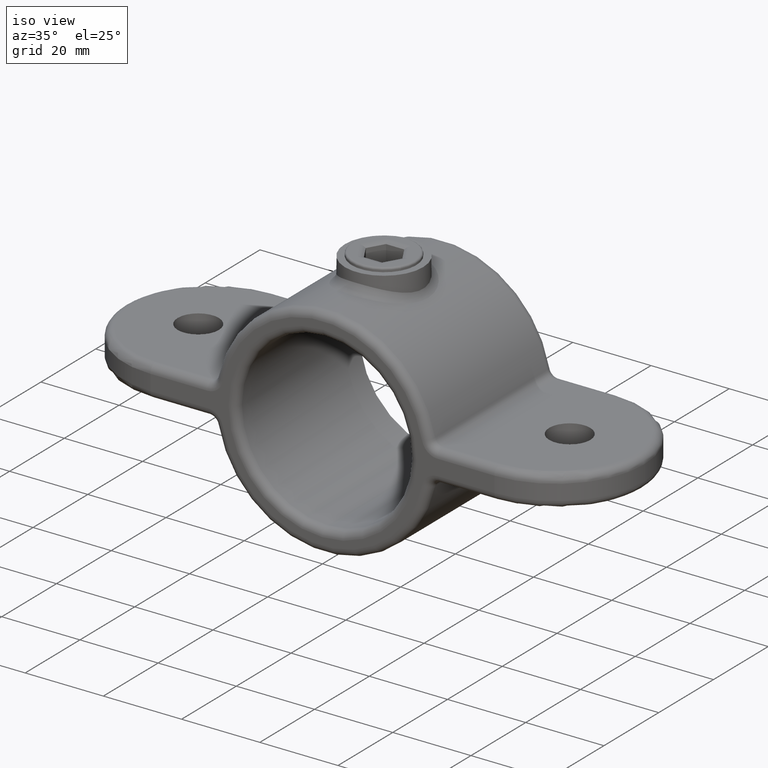
[diagram: clean part render]
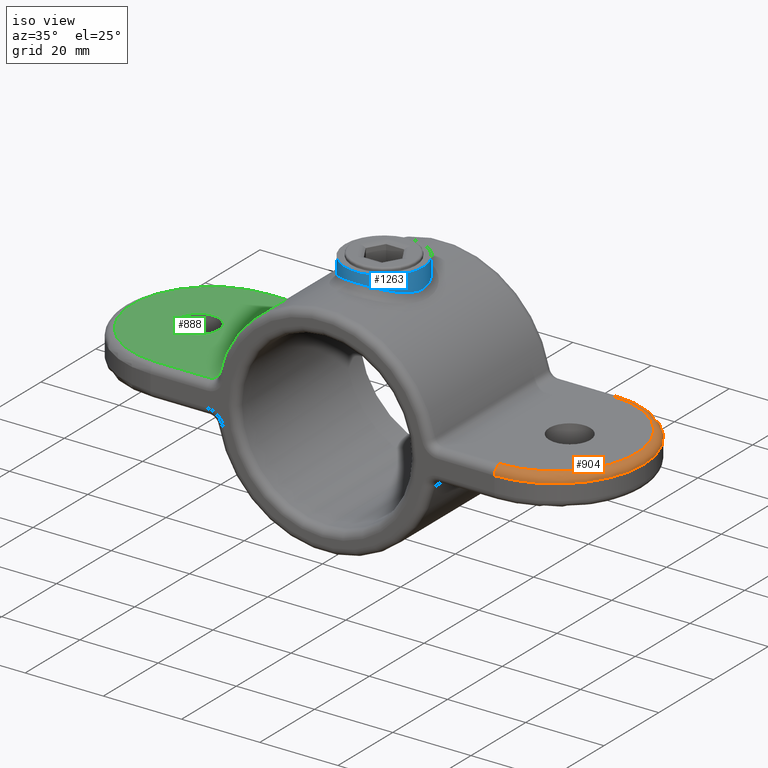
[diagram: same view with three faces highlighted in distinct colors, each labeled with its STEP entity id]
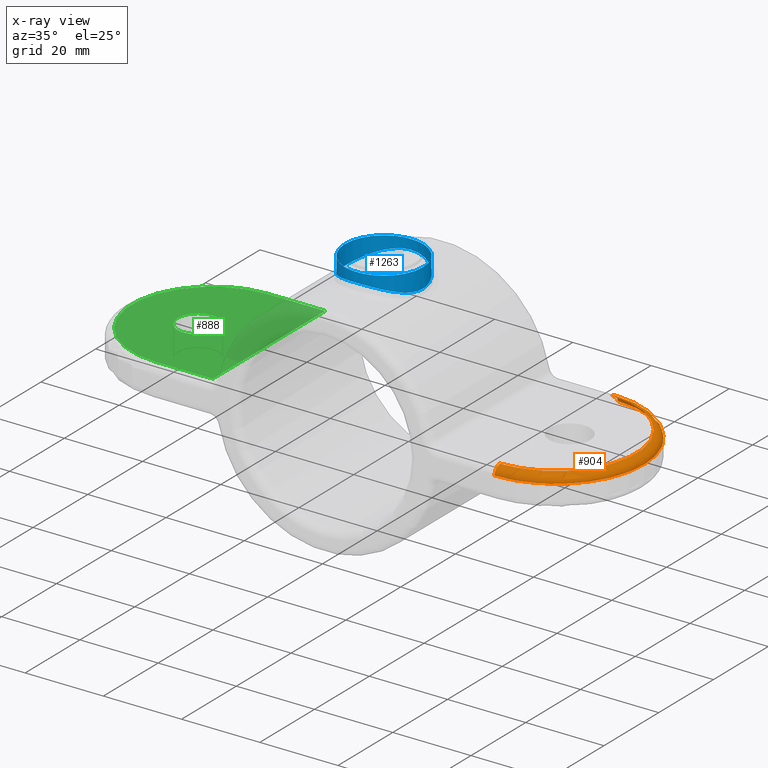
[diagram: x-ray of the same camera — body ghosted, the three highlighted faces saturated]
A machine part, iso view with three faces highlighted in distinct colors.
The next image is the same camera in x-ray (body ghosted, the three faces saturated) — at least one of them is partly hidden behind the body in this view.
Their STEP definitions:

[orange] entity #904 — the highlighted toroidal blend (fillet) surface has major radius 20.5 mm and minor (blend) radius 2 mm.
#70 = EDGE_CURVE ( 'NONE', #2636, #1897, #892, .T. ) ;
#282 = EDGE_LOOP ( 'NONE', ( #2623, #2871, #2290, #2196 ) ) ;
#406 = CARTESIAN_POINT ( 'NONE',  ( 44.00000000000001421, 45.00000000000000000, 2.000000000000000000 ) ) ;
#433 = CARTESIAN_POINT ( 'NONE',  ( 44.00000000000001421, 22.50000000000000000, 2.000000000000000000 ) ) ;
#481 = AXIS2_PLACEMENT_3D ( 'NONE', #587, #2630, #1251 ) ;
#526 = VERTEX_POINT ( 'NONE', #1655 ) ;
#585 = CIRCLE ( 'NONE', #1706, 22.49999999999999289 ) ;
#587 = CARTESIAN_POINT ( 'NONE',  ( 44.00000000000001421, 22.50000000000000000, 2.000000000000000000 ) ) ;
#694 = CIRCLE ( 'NONE', #1361, 2.000000000000000000 ) ;
#892 = CIRCLE ( 'NONE', #1670, 20.49999999999998934 ) ;
#904 = ADVANCED_FACE ( 'NONE', ( #1546 ), #2425, .T. ) ;
#992 = CIRCLE ( 'NONE', #1737, 2.000000000000000000 ) ;
#993 = DIRECTION ( 'NONE',  ( 1.000000000000000000, 0.000000000000000000, 0.000000000000000000 ) ) ;
#1002 = DIRECTION ( 'NONE',  ( 0.000000000000000000, 0.000000000000000000, -1.000000000000000000 ) ) ;
#1251 = DIRECTION ( 'NONE',  ( 1.000000000000000000, 0.000000000000000000, 0.000000000000000000 ) ) ;
#1361 = AXIS2_PLACEMENT_3D ( 'NONE', #2348, #993, #1002 ) ;
#1448 = DIRECTION ( 'NONE',  ( 0.000000000000000000, 0.000000000000000000, 1.000000000000000000 ) ) ;
#1527 = DIRECTION ( 'NONE',  ( 0.000000000000000000, 0.000000000000000000, 1.000000000000000000 ) ) ;
#1546 = FACE_OUTER_BOUND ( 'NONE', #282, .T. ) ;
#1646 = DIRECTION ( 'NONE',  ( 1.000000000000000000, 0.000000000000000000, 0.000000000000000000 ) ) ;
#1655 = CARTESIAN_POINT ( 'NONE',  ( 44.00000000000000711, 0.000000000000000000, 2.000000000000000000 ) ) ;
#1670 = AXIS2_PLACEMENT_3D ( 'NONE', #2084, #1448, #1646 ) ;
#1706 = AXIS2_PLACEMENT_3D ( 'NONE', #433, #2155, #2852 ) ;
#1724 = CARTESIAN_POINT ( 'NONE',  ( 44.00000000000001421, 43.00000000000000000, 4.000000000000000000 ) ) ;
#1737 = AXIS2_PLACEMENT_3D ( 'NONE', #2195, #1767, #1527 ) ;
#1767 = DIRECTION ( 'NONE',  ( -1.000000000000000000, 0.000000000000000000, 0.000000000000000000 ) ) ;
#1852 = EDGE_CURVE ( 'NONE', #526, #2636, #992, .T. ) ;
#1897 = VERTEX_POINT ( 'NONE', #1724 ) ;
#2084 = CARTESIAN_POINT ( 'NONE',  ( 44.00000000000001421, 22.50000000000000000, 4.000000000000000000 ) ) ;
#2146 = CARTESIAN_POINT ( 'NONE',  ( 44.00000000000000711, 2.000000000000001776, 4.000000000000000000 ) ) ;
#2155 = DIRECTION ( 'NONE',  ( -0.000000000000000000, -0.000000000000000000, -1.000000000000000000 ) ) ;
#2195 = CARTESIAN_POINT ( 'NONE',  ( 44.00000000000000711, 2.000000000000000000, 2.000000000000000000 ) ) ;
#2196 = ORIENTED_EDGE ( 'NONE', *, *, #2754, .F. ) ;
#2290 = ORIENTED_EDGE ( 'NONE', *, *, #1852, .F. ) ;
#2348 = CARTESIAN_POINT ( 'NONE',  ( 44.00000000000001421, 43.00000000000000000, 2.000000000000000000 ) ) ;
#2425 = TOROIDAL_SURFACE ( 'NONE', #481, 20.49999999999999645, 2.000000000000000000 ) ;
#2623 = ORIENTED_EDGE ( 'NONE', *, *, #2645, .T. ) ;
#2630 = DIRECTION ( 'NONE',  ( 0.000000000000000000, 0.000000000000000000, 1.000000000000000000 ) ) ;
#2636 = VERTEX_POINT ( 'NONE', #2146 ) ;
#2645 = EDGE_CURVE ( 'NONE', #2805, #1897, #694, .T. ) ;
#2754 = EDGE_CURVE ( 'NONE', #2805, #526, #585, .T. ) ;
#2805 = VERTEX_POINT ( 'NONE', #406 ) ;
#2852 = DIRECTION ( 'NONE',  ( 1.000000000000000000, 0.000000000000000000, 0.000000000000000000 ) ) ;
#2871 = ORIENTED_EDGE ( 'NONE', *, *, #70, .F. ) ;

[blue] entity #1263 — the highlighted cylindrical surface (bore or boss wall) has radius 10 mm, axis along (-0, -0, -1).
#12 = CARTESIAN_POINT ( 'NONE',  ( 6.622794208319118248, 30.02019254127147718, 28.93377902185220307 ) ) ;
#19 = CARTESIAN_POINT ( 'NONE',  ( 5.851919554816922719, 14.38464557356769191, 29.16840172154029176 ) ) ;
#32 = CARTESIAN_POINT ( 'NONE',  ( 4.171150980207340986, 13.40548047051905023, 29.58179595202526713 ) ) ;
#54 = CARTESIAN_POINT ( 'NONE',  ( 9.476708080692997527, 25.75793250835366166, 27.76294633932060307 ) ) ;
#64 = CARTESIAN_POINT ( 'NONE',  ( -9.737926309719856732, 24.79808518369776493, 27.63070786210274932 ) ) ;
#79 = CARTESIAN_POINT ( 'NONE',  ( -4.464995558829286892, 31.47151288054516627, 29.52667067408633272 ) ) ;
#94 = CARTESIAN_POINT ( 'NONE',  ( -6.844573745175799750, 29.79759653527101193, 28.85514315200595803 ) ) ;
#102 = CARTESIAN_POINT ( 'NONE',  ( -1.326783075261378952, 32.43362877966936253, 29.96788425861287308 ) ) ;
#131 = DIRECTION ( 'NONE',  ( -1.000000000000000000, 0.000000000000000000, 0.000000000000000000 ) ) ;
#181 = CARTESIAN_POINT ( 'NONE',  ( 10.00000000000000178, 22.50000000000000000, 32.49999999999999289 ) ) ;
#233 = CARTESIAN_POINT ( 'NONE',  ( -9.932904982622765999, 21.16975370590785843, 27.53097399777186638 ) ) ;
#239 = CARTESIAN_POINT ( 'NONE',  ( 7.944603943576116656, 16.39258270802082862, 28.44857682741926652 ) ) ;
#250 = CARTESIAN_POINT ( 'NONE',  ( 8.977818022158581712, 18.04756325138937001, 28.00070361428770127 ) ) ;
#261 = CARTESIAN_POINT ( 'NONE',  ( 5.040457930359802496, 13.85710905413484184, 29.38600627992249059 ) ) ;
#267 = CARTESIAN_POINT ( 'NONE',  ( 7.536724103564595545, 15.89563243435954121, 28.61001122192883273 ) ) ;
#281 = CARTESIAN_POINT ( 'NONE',  ( 8.961096985873348686, 26.95025414472403469, 28.00723653991551032 ) ) ;
#297 = CARTESIAN_POINT ( 'NONE',  ( -2.623432459663675331, 32.15541545845545102, 29.83681196435464500 ) ) ;
#314 = CARTESIAN_POINT ( 'NONE',  ( -6.108233588266227976, 30.42424823643639087, 29.09241248789619405 ) ) ;
#326 = CARTESIAN_POINT ( 'NONE',  ( -5.035221827422885710, 31.16434832084092577, 29.39275725080900514 ) ) ;
#431 = CARTESIAN_POINT ( 'NONE',  ( -3.558234213291098680, 13.14876467506906543, 29.69683459840415907 ) ) ;
#432 = CIRCLE ( 'NONE', #1759, 10.00000000000000178 ) ;
#441 = EDGE_CURVE ( 'NONE', #812, #812, #1087, .T. ) ;
#466 = CARTESIAN_POINT ( 'NONE',  ( 9.480102581375092541, 19.25145194187018305, 27.76128559405074014 ) ) ;
#474 = CARTESIAN_POINT ( 'NONE',  ( 9.934485987634904092, 23.82356544404882115, 27.53017085010103315 ) ) ;
#482 = CARTESIAN_POINT ( 'NONE',  ( 9.869032174585326445, 20.85306333972795656, 27.56364396502981862 ) ) ;
#505 = CARTESIAN_POINT ( 'NONE',  ( 10.00018264041746363, 22.17610790866214643, 27.49535851677714504 ) ) ;
#510 = CARTESIAN_POINT ( 'NONE',  ( -8.120439402843983245, 28.34499680683589062, 28.37423612316986521 ) ) ;
#532 = CARTESIAN_POINT ( 'NONE',  ( 0.6621789904701769203, 32.48362802694693841, 29.99212463856281374 ) ) ;
#543 = CARTESIAN_POINT ( 'NONE',  ( -6.606638979578753457, 30.01375732074173541, 28.93515081128246536 ) ) ;
#635 = CARTESIAN_POINT ( 'NONE',  ( -9.657469083909210994, 19.88424349025884652, 27.67149652192184917 ) ) ;
#665 = CARTESIAN_POINT ( 'NONE',  ( -4.454780112947243076, 13.54113796723617824, 29.52196060901718511 ) ) ;
#668 = ORIENTED_EDGE ( 'NONE', *, *, #441, .T. ) ;
#682 = CARTESIAN_POINT ( 'NONE',  ( 4.471808932678349890, 31.46873994643011585, 29.52542342355807037 ) ) ;
#713 = CARTESIAN_POINT ( 'NONE',  ( 3.258644845589846906, 13.02284970798234554, 29.75323421909739707 ) ) ;
#715 = EDGE_CURVE ( 'NONE', #2068, #2068, #432, .T. ) ;
#733 = CARTESIAN_POINT ( 'NONE',  ( 1.326135221870601288, 32.41729171544199772, 29.96041587052595290 ) ) ;
#747 = CARTESIAN_POINT ( 'NONE',  ( -9.933037868943605631, 23.82980299081985009, 27.53090705241965708 ) ) ;
#753 = CARTESIAN_POINT ( 'NONE',  ( -8.663773104302313399, 27.53598358475277763, 28.14470752134748821 ) ) ;
#765 = CARTESIAN_POINT ( 'NONE',  ( -7.514775830554404124, 29.10548220955039511, 28.61376543254218063 ) ) ;
#812 = VERTEX_POINT ( 'NONE', #1941 ) ;
#864 = CARTESIAN_POINT ( 'NONE',  ( -9.738185090744673644, 20.20309114512838988, 27.63057600661922919 ) ) ;
#877 = CARTESIAN_POINT ( 'NONE',  ( -7.528388174229828422, 15.88651677530456396, 28.61311064429564865 ) ) ;
#890 = CARTESIAN_POINT ( 'NONE',  ( -2.292872485800744986, 12.76076481394416540, 29.87612271389791019 ) ) ;
#910 = CARTESIAN_POINT ( 'NONE',  ( 8.664340701934049704, 17.46547142232159899, 28.14440735947289340 ) ) ;
#919 = EDGE_LOOP ( 'NONE', ( #668 ) ) ;
#928 = CARTESIAN_POINT ( 'NONE',  ( 8.482985971267718028, 27.80510173558304388, 28.22107316986464198 ) ) ;
#957 = CARTESIAN_POINT ( 'NONE',  ( -3.255849477052296770, 31.96091378930047355, 29.74695279777168722 ) ) ;
#984 = ORIENTED_EDGE ( 'NONE', *, *, #715, .F. ) ;
#1006 = CARTESIAN_POINT ( 'NONE',  ( 0.000000000000000000, 22.50000000000000000, 32.49999999999999289 ) ) ;
#1087 = B_SPLINE_CURVE_WITH_KNOTS ( 'NONE', 3,
 ( #1736, #2849, #233, #864, #635, #2176, #2417, #1763, #1979, #2649, #877, #2869, #2214, #1749, #1510, #665, #2201, #431, #1499, #1961, #890, #2012, #1565, #1814, #1130, #2233, #2021, #2678, #713, #32, #2258, #261, #2697, #19, #2444, #1556, #1794, #267, #239, #910, #250, #466, #1779, #482, #1805, #2030, #505, #2706, #474, #2044, #54, #1588, #281, #2688, #928, #2669, #2244, #12, #1326, #1771, #682, #1172, #1617, #1861, #1835, #2309, #733, #532, #1136, #2751, #102, #2502, #297, #957, #1632, #79, #326, #1406, #314, #543, #94, #2509, #765, #1825, #510, #753, #2741, #1606, #1844, #1625, #64, #747, #2060, #2090 ),
 .UNSPECIFIED., .T., .F.,
 ( 4, 2, 2, 2, 2, 2, 2, 2, 2, 2, 2, 2, 2, 2, 2, 2, 2, 2, 2, 2, 2, 2, 2, 2, 2, 2, 2, 2, 2, 2, 2, 2, 2, 2, 2, 2, 2, 2, 2, 2, 2, 2, 2, 2, 2, 2, 4 ),
 ( 0.000000000000000000, 0.001981109626637219973, 0.002971664439955824973, 0.003962219253274430406, 0.005943328879911640404, 0.007924438506548850403, 0.009905548133186059534, 0.01089610294650466757, 0.01188665775982327213, 0.01287721257314188017, 0.01386776738646048647, 0.01584887701309770081, 0.01683943182641630537, 0.01782998663973491688, 0.01981109626637212948, 0.02080165107969073751, 0.02179220589300934555, 0.02278276070632795011, 0.02377331551964655468, 0.02575442514628377422, 0.02773553477292099029, 0.02971664439955820636, 0.03070719921287681092, 0.03169775402619540855, 0.03367886365283262462, 0.03565997327946985457, 0.03665052809278845913, 0.03764108290610707064, 0.03962219253274427977, 0.04160330215938149584, 0.04358441178601871191, 0.04457496659933731648, 0.04556552141265591410, 0.04655607622597451867, 0.04754663103929311629, 0.04952774066593032543, 0.05051829547924892305, 0.05150885029256753456, 0.05348995991920472981, 0.05448051473252333438, 0.05547106954584193894, 0.05646162435916053657, 0.05745217917247914113, 0.05943328879911633639, 0.06042384361243494095, 0.06141439842575354552, 0.06339550805239074771 ),
 .UNSPECIFIED. ) ;
#1130 = CARTESIAN_POINT ( 'NONE',  ( 0.6737986918661146296, 12.51714846169067030, 29.99175192173827398 ) ) ;
#1136 = CARTESIAN_POINT ( 'NONE',  ( 0.3257868494820493344, 32.50020863867860044, 30.00010014654872492 ) ) ;
#1172 = CARTESIAN_POINT ( 'NONE',  ( 3.558907782991938440, 31.85109716725411388, 29.69676441460828542 ) ) ;
#1228 = DIRECTION ( 'NONE',  ( -0.000000000000000000, -0.000000000000000000, -1.000000000000000000 ) ) ;
#1240 = DIRECTION ( 'NONE',  ( 0.000000000000000000, 0.000000000000000000, 1.000000000000000000 ) ) ;
#1263 = ADVANCED_FACE ( 'NONE', ( #2421, #1971 ), #2853, .T. ) ;
#1326 = CARTESIAN_POINT ( 'NONE',  ( 6.116665579276277853, 30.43756735186795481, 29.09572594126508704 ) ) ;
#1405 = EDGE_LOOP ( 'NONE', ( #984 ) ) ;
#1406 = CARTESIAN_POINT ( 'NONE',  ( -5.846387818485253796, 30.61947332928194498, 29.17003992340400842 ) ) ;
#1493 = CARTESIAN_POINT ( 'NONE',  ( 0.000000000000000000, 22.50000000000000000, 32.49999999999999289 ) ) ;
#1499 = CARTESIAN_POINT ( 'NONE',  ( -3.249797247090354890, 13.03701534561710673, 29.74790242890325587 ) ) ;
#1510 = CARTESIAN_POINT ( 'NONE',  ( -5.028815885516179307, 13.85030141759913569, 29.38889090401577064 ) ) ;
#1556 = CARTESIAN_POINT ( 'NONE',  ( 6.608787295665230488, 14.98812464824279012, 28.93444548278780459 ) ) ;
#1565 = CARTESIAN_POINT ( 'NONE',  ( -0.6599999847507238560, 12.49967943703734718, 30.00015387020692614 ) ) ;
#1588 = CARTESIAN_POINT ( 'NONE',  ( 9.100784627109430147, 26.65707219565447517, 27.94206884865534590 ) ) ;
#1606 = CARTESIAN_POINT ( 'NONE',  ( -9.349912544164411088, 26.06172921293726219, 27.82338077982819158 ) ) ;
#1617 = CARTESIAN_POINT ( 'NONE',  ( 3.247476939411381380, 31.96372538753772830, 29.74824372935308858 ) ) ;
#1625 = CARTESIAN_POINT ( 'NONE',  ( -9.656983315117047439, 25.11767646655662745, 27.67174293845051025 ) ) ;
#1632 = CARTESIAN_POINT ( 'NONE',  ( -3.563895403299301545, 31.84904843986169354, 29.69584402496031927 ) ) ;
#1690 = DIRECTION ( 'NONE',  ( 1.000000000000000000, 0.000000000000000000, 0.000000000000000000 ) ) ;
#1736 = CARTESIAN_POINT ( 'NONE',  ( -10.00000000000000355, 22.50000000000000000, 27.49545416973506917 ) ) ;
#1749 = CARTESIAN_POINT ( 'NONE',  ( -5.310178048851419419, 14.02013078539979318, 29.31732745362355175 ) ) ;
#1759 = AXIS2_PLACEMENT_3D ( 'NONE', #1493, #1240, #1690 ) ;
#1763 = CARTESIAN_POINT ( 'NONE',  ( -8.971429611559344153, 18.03432622280196540, 28.00367757269335556 ) ) ;
#1771 = CARTESIAN_POINT ( 'NONE',  ( 5.042877330171631201, 31.15955896723293250, 29.39075990764836277 ) ) ;
#1779 = CARTESIAN_POINT ( 'NONE',  ( 9.672608292201113400, 19.87675114992198999, 27.66412323128110629 ) ) ;
#1794 = CARTESIAN_POINT ( 'NONE',  ( 6.850211648821378674, 15.20756757623453304, 28.85323908565628770 ) ) ;
#1805 = CARTESIAN_POINT ( 'NONE',  ( 9.918825818898678648, 21.18584688440432018, 27.53779497179125713 ) ) ;
#1814 = CARTESIAN_POINT ( 'NONE',  ( 0.3372589015655695355, 12.50016203787351898, 29.99992222182833856 ) ) ;
#1825 = CARTESIAN_POINT ( 'NONE',  ( -7.925234081429258559, 28.60695634164215662, 28.45385038625384766 ) ) ;
#1835 = CARTESIAN_POINT ( 'NONE',  ( 2.299770008482054706, 32.23754045103155619, 29.87532749204055094 ) ) ;
#1844 = CARTESIAN_POINT ( 'NONE',  ( -9.462749455754762451, 25.75052758327418445, 27.76820275984053765 ) ) ;
#1861 = CARTESIAN_POINT ( 'NONE',  ( 2.618521000274864452, 32.15668434059301006, 29.83740637339478496 ) ) ;
#1939 = AXIS2_PLACEMENT_3D ( 'NONE', #1006, #1228, #131 ) ;
#1941 = CARTESIAN_POINT ( 'NONE',  ( -10.00000000000000178, 22.50000000000000000, 27.49545416973507272 ) ) ;
#1961 = CARTESIAN_POINT ( 'NONE',  ( -2.617795761307442959, 12.84306435413577852, 29.83752152103968314 ) ) ;
#1971 = FACE_OUTER_BOUND ( 'NONE', #1405, .T. ) ;
#1979 = CARTESIAN_POINT ( 'NONE',  ( -8.664429000265680969, 17.46564803090005213, 28.14436559482916778 ) ) ;
#2012 = CARTESIAN_POINT ( 'NONE',  ( -1.317487947733531950, 12.56500676953539397, 29.96853617370448220 ) ) ;
#2021 = CARTESIAN_POINT ( 'NONE',  ( 1.664831203941333104, 12.63406932532017990, 29.93592294751976368 ) ) ;
#2030 = CARTESIAN_POINT ( 'NONE',  ( 9.984124136576040698, 21.84626514371599626, 27.50379402798789741 ) ) ;
#2044 = CARTESIAN_POINT ( 'NONE',  ( 9.670328695492143467, 25.13259952220909810, 27.66527993513992101 ) ) ;
#2060 = CARTESIAN_POINT ( 'NONE',  ( -10.00000000000000355, 23.17240044319024150, 27.49545416973506917 ) ) ;
#2068 = VERTEX_POINT ( 'NONE', #181 ) ;
#2090 = CARTESIAN_POINT ( 'NONE',  ( -10.00000000000000355, 22.50000000000000000, 27.49545416973506917 ) ) ;
#2176 = CARTESIAN_POINT ( 'NONE',  ( -9.464014492319687832, 19.25325995588215733, 27.76757965017334229 ) ) ;
#2201 = CARTESIAN_POINT ( 'NONE',  ( -4.160726480184121279, 13.40082487387092414, 29.58386554903104226 ) ) ;
#2214 = CARTESIAN_POINT ( 'NONE',  ( -6.121331405126518632, 14.56564476107084793, 29.09442177410735653 ) ) ;
#2233 = CARTESIAN_POINT ( 'NONE',  ( 1.337736456708799926, 12.58426549944596573, 29.95967313170234902 ) ) ;
#2244 = CARTESIAN_POINT ( 'NONE',  ( 7.532649301026024702, 29.10862266219616501, 28.61148771171488647 ) ) ;
#2258 = CARTESIAN_POINT ( 'NONE',  ( 4.468199575467327378, 13.54785095054608846, 29.51902765359715630 ) ) ;
#2309 = CARTESIAN_POINT ( 'NONE',  ( 1.653576675553633635, 32.36784273818015123, 29.93683107119795395 ) ) ;
#2417 = CARTESIAN_POINT ( 'NONE',  ( -9.350733156245100375, 18.94036696686609744, 27.82298517291964757 ) ) ;
#2421 = FACE_OUTER_BOUND ( 'NONE', #919, .T. ) ;
#2444 = CARTESIAN_POINT ( 'NONE',  ( 6.110221542101410996, 14.57727739182270632, 29.09181247364199052 ) ) ;
#2502 = CARTESIAN_POINT ( 'NONE',  ( -2.299211354040940236, 32.23770818338267929, 29.87540580524352762 ) ) ;
#2509 = CARTESIAN_POINT ( 'NONE',  ( -7.298642436608552941, 29.34345844783805290, 28.69445274484505859 ) ) ;
#2649 = CARTESIAN_POINT ( 'NONE',  ( -7.944947894198874039, 16.39305046624009421, 28.44843591574975505 ) ) ;
#2669 = CARTESIAN_POINT ( 'NONE',  ( 7.940698906337313900, 28.61276717480206955, 28.45018049847978858 ) ) ;
#2678 = CARTESIAN_POINT ( 'NONE',  ( 2.632189844742737872, 12.83022333856395925, 29.84335402957596628 ) ) ;
#2688 = CARTESIAN_POINT ( 'NONE',  ( 8.652614274165863151, 27.52377222466973095, 28.14657306311210405 ) ) ;
#2697 = CARTESIAN_POINT ( 'NONE',  ( 5.317037068854658877, 14.02456155994932629, 29.31549646788875663 ) ) ;
#2706 = CARTESIAN_POINT ( 'NONE',  ( 9.999630030814385506, 23.16455621356418249, 27.49564793104739380 ) ) ;
#2741 = CARTESIAN_POINT ( 'NONE',  ( -8.971204129905634872, 26.96593940160623859, 28.00377558437640246 ) ) ;
#2751 = CARTESIAN_POINT ( 'NONE',  ( -0.6706009245385006201, 32.49957668872031036, 29.99979681061999415 ) ) ;
#2849 = CARTESIAN_POINT ( 'NONE',  ( -10.00000000000000355, 21.82759955680975139, 27.49545416973506562 ) ) ;
#2853 = CYLINDRICAL_SURFACE ( 'NONE', #1939, 10.00000000000000178 ) ;
#2869 = CARTESIAN_POINT ( 'NONE',  ( -6.617840266882782707, 14.97544160317455386, 28.93541912045396813 ) ) ;

[green] entity #888 — the highlighted planar face has unit normal (0, 0, 1).
#3 = DIRECTION ( 'NONE',  ( 1.000000000000000000, 0.000000000000000000, 0.000000000000000000 ) ) ;
#72 = VERTEX_POINT ( 'NONE', #271 ) ;
#209 = VERTEX_POINT ( 'NONE', #1730 ) ;
#225 = CARTESIAN_POINT ( 'NONE',  ( -47.50000000000000711, 22.49999999999997868, 4.000000000000000000 ) ) ;
#244 = CARTESIAN_POINT ( 'NONE',  ( -44.00000000000001421, 22.50000000000000000, 4.000000000000000000 ) ) ;
#254 = VERTEX_POINT ( 'NONE', #1461 ) ;
#266 = CARTESIAN_POINT ( 'NONE',  ( 44.00000000000001421, 43.00000000000000000, 4.000000000000000000 ) ) ;
#271 = CARTESIAN_POINT ( 'NONE',  ( -44.00000000000001421, 2.000000000000001776, 4.000000000000000000 ) ) ;
#333 = FACE_OUTER_BOUND ( 'NONE', #702, .T. ) ;
#361 = DIRECTION ( 'NONE',  ( 1.000000000000000000, -0.000000000000000000, 0.000000000000000000 ) ) ;
#369 = DIRECTION ( 'NONE',  ( 0.000000000000000000, 0.000000000000000000, 1.000000000000000000 ) ) ;
#411 = EDGE_CURVE ( 'NONE', #209, #209, #1718, .T. ) ;
#419 = DIRECTION ( 'NONE',  ( 0.000000000000000000, 0.000000000000000000, 1.000000000000000000 ) ) ;
#608 = EDGE_CURVE ( 'NONE', #254, #947, #1659, .T. ) ;
#702 = EDGE_LOOP ( 'NONE', ( #1674, #1402, #1998, #1261 ) ) ;
#783 = ORIENTED_EDGE ( 'NONE', *, *, #411, .F. ) ;
#823 = FACE_BOUND ( 'NONE', #2731, .T. ) ;
#838 = DIRECTION ( 'NONE',  ( -0.000000000000000000, 1.000000000000000000, -0.000000000000000000 ) ) ;
#888 = ADVANCED_FACE ( 'NONE', ( #333, #823 ), #2336, .T. ) ;
#947 = VERTEX_POINT ( 'NONE', #1498 ) ;
#1012 = CARTESIAN_POINT ( 'NONE',  ( -44.00000000000001421, 43.00000000000000000, 4.000000000000000000 ) ) ;
#1033 = AXIS2_PLACEMENT_3D ( 'NONE', #244, #1078, #1329 ) ;
#1041 = CARTESIAN_POINT ( 'NONE',  ( -29.39387691339813458, 22.50000000000000000, 4.000000000000000000 ) ) ;
#1078 = DIRECTION ( 'NONE',  ( 0.000000000000000000, 0.000000000000000000, 1.000000000000000000 ) ) ;
#1187 = LINE ( 'NONE', #1664, #2112 ) ;
#1261 = ORIENTED_EDGE ( 'NONE', *, *, #1445, .T. ) ;
#1268 = VECTOR ( 'NONE', #838, 1000.000000000000000 ) ;
#1329 = DIRECTION ( 'NONE',  ( 1.000000000000000000, 0.000000000000000000, 0.000000000000000000 ) ) ;
#1402 = ORIENTED_EDGE ( 'NONE', *, *, #1720, .T. ) ;
#1445 = EDGE_CURVE ( 'NONE', #947, #2242, #2324, .T. ) ;
#1447 = CARTESIAN_POINT ( 'NONE',  ( 44.00000000000001421, 22.50000000000000000, 4.000000000000000000 ) ) ;
#1461 = CARTESIAN_POINT ( 'NONE',  ( -29.39387691339813458, 2.000000000000001776, 4.000000000000000000 ) ) ;
#1498 = CARTESIAN_POINT ( 'NONE',  ( -29.39387691339813458, 43.00000000000000000, 4.000000000000000000 ) ) ;
#1584 = VECTOR ( 'NONE', #2501, 1000.000000000000000 ) ;
#1659 = LINE ( 'NONE', #1041, #1268 ) ;
#1664 = CARTESIAN_POINT ( 'NONE',  ( -27.71281292110203154, 2.000000000000001776, 4.000000000000000000 ) ) ;
#1674 = ORIENTED_EDGE ( 'NONE', *, *, #1891, .T. ) ;
#1716 = CIRCLE ( 'NONE', #1033, 20.49999999999999645 ) ;
#1718 = CIRCLE ( 'NONE', #2162, 5.249999999999997335 ) ;
#1720 = EDGE_CURVE ( 'NONE', #72, #254, #1187, .T. ) ;
#1730 = CARTESIAN_POINT ( 'NONE',  ( -42.25000000000000711, 22.49999999999997868, 4.000000000000000000 ) ) ;
#1891 = EDGE_CURVE ( 'NONE', #2242, #72, #1716, .T. ) ;
#1905 = DIRECTION ( 'NONE',  ( 1.000000000000000000, 0.000000000000000000, -0.000000000000000000 ) ) ;
#1998 = ORIENTED_EDGE ( 'NONE', *, *, #608, .T. ) ;
#2112 = VECTOR ( 'NONE', #361, 1000.000000000000000 ) ;
#2162 = AXIS2_PLACEMENT_3D ( 'NONE', #225, #419, #3 ) ;
#2242 = VERTEX_POINT ( 'NONE', #1012 ) ;
#2324 = LINE ( 'NONE', #266, #1584 ) ;
#2336 = PLANE ( 'NONE',  #2614 ) ;
#2501 = DIRECTION ( 'NONE',  ( -1.000000000000000000, 0.000000000000000000, 0.000000000000000000 ) ) ;
#2614 = AXIS2_PLACEMENT_3D ( 'NONE', #1447, #369, #1905 ) ;
#2731 = EDGE_LOOP ( 'NONE', ( #783 ) ) ;